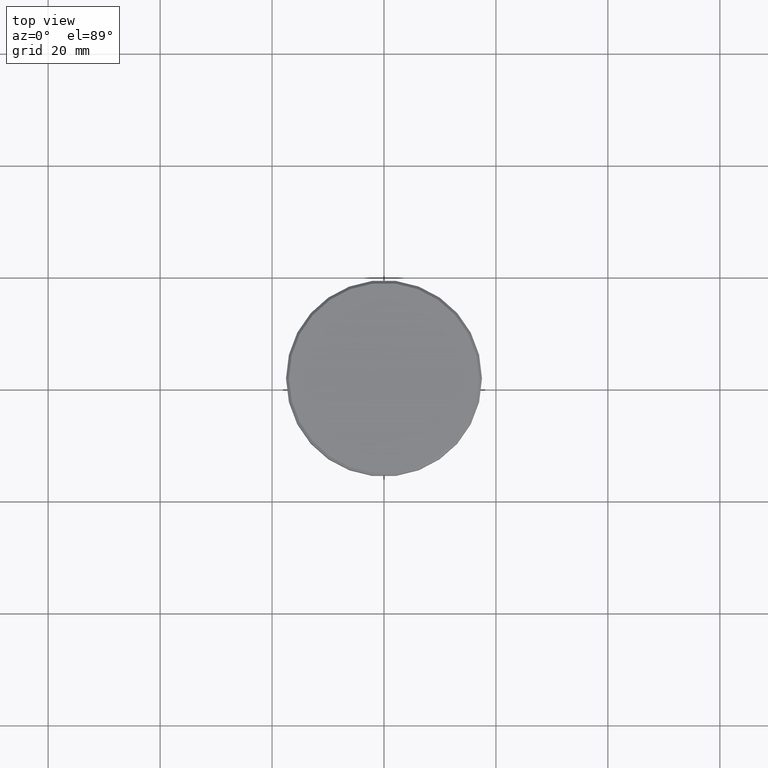
[diagram: clean part render]
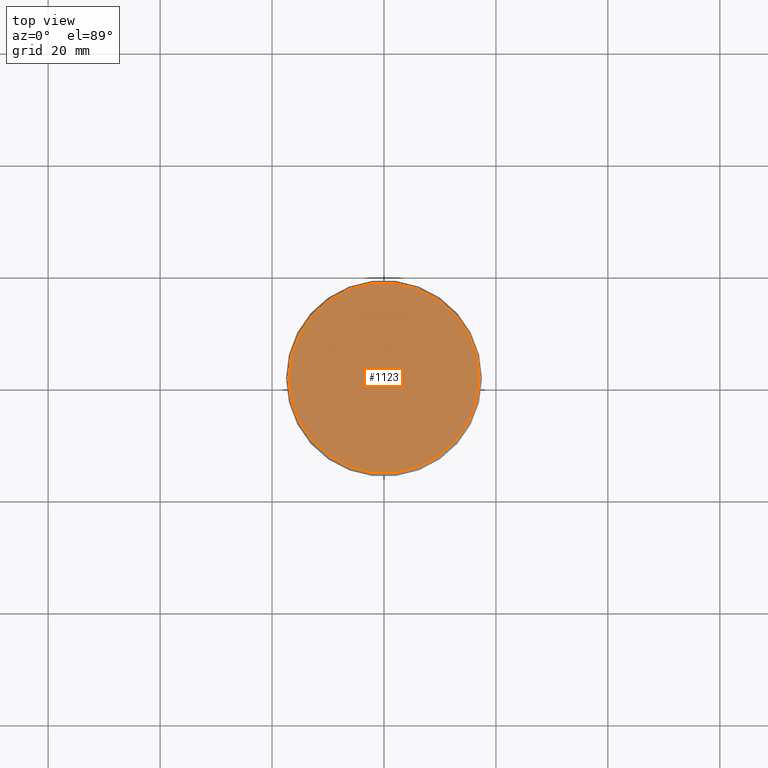
[diagram: same view with one face highlighted and labeled with its STEP entity id]
A machine part, top view. The second image highlights one B-rep face of the part: STEP entity #1123.
In plain terms, the highlighted planar face has unit normal (0, -0, 1).
Its self-contained STEP definition (entity closure, byte-faithful):
#54 = DIRECTION ( 'NONE',  ( -0.000000000000000000, -0.000000000000000000, 1.000000000000000000 ) ) ;
#95 = VERTEX_POINT ( 'NONE', #248 ) ;
#117 = EDGE_CURVE ( 'NONE', #267, #95, #163, .T. ) ;
#163 = CIRCLE ( 'NONE', #832, 17.00000000000002842 ) ;
#248 = CARTESIAN_POINT ( 'NONE',  ( -17.00000000000002842, 0.000000000000000000, 0.000000000000000000 ) ) ;
#265 = DIRECTION ( 'NONE',  ( -0.000000000000000000, -0.000000000000000000, 1.000000000000000000 ) ) ;
#267 = VERTEX_POINT ( 'NONE', #530 ) ;
#349 = FACE_OUTER_BOUND ( 'NONE', #958, .T. ) ;
#393 = EDGE_CURVE ( 'NONE', #95, #267, #587, .T. ) ;
#444 = DIRECTION ( 'NONE',  ( 1.000000000000000000, 0.000000000000000000, 0.000000000000000000 ) ) ;
#514 = DIRECTION ( 'NONE',  ( 1.000000000000000000, 0.000000000000000000, 0.000000000000000000 ) ) ;
#528 = DIRECTION ( 'NONE',  ( 0.000000000000000000, -0.000000000000000000, 1.000000000000000000 ) ) ;
#530 = CARTESIAN_POINT ( 'NONE',  ( 17.00000000000002842, 2.112515728529186039E-15, 0.000000000000000000 ) ) ;
#587 = CIRCLE ( 'NONE', #589, 17.00000000000002842 ) ;
#589 = AXIS2_PLACEMENT_3D ( 'NONE', #1160, #265, #994 ) ;
#617 = CARTESIAN_POINT ( 'NONE',  ( 0.000000000000000000, 0.000000000000000000, 0.000000000000000000 ) ) ;
#726 = ORIENTED_EDGE ( 'NONE', *, *, #117, .T. ) ;
#832 = AXIS2_PLACEMENT_3D ( 'NONE', #961, #54, #514 ) ;
#958 = EDGE_LOOP ( 'NONE', ( #1002, #726 ) ) ;
#961 = CARTESIAN_POINT ( 'NONE',  ( 0.000000000000000000, 0.000000000000000000, 0.000000000000000000 ) ) ;
#977 = PLANE ( 'NONE',  #987 ) ;
#987 = AXIS2_PLACEMENT_3D ( 'NONE', #617, #528, #444 ) ;
#994 = DIRECTION ( 'NONE',  ( 1.000000000000000000, 0.000000000000000000, 0.000000000000000000 ) ) ;
#1002 = ORIENTED_EDGE ( 'NONE', *, *, #393, .T. ) ;
#1123 = ADVANCED_FACE ( 'NONE', ( #349 ), #977, .T. ) ;
#1160 = CARTESIAN_POINT ( 'NONE',  ( 0.000000000000000000, 0.000000000000000000, 0.000000000000000000 ) ) ;